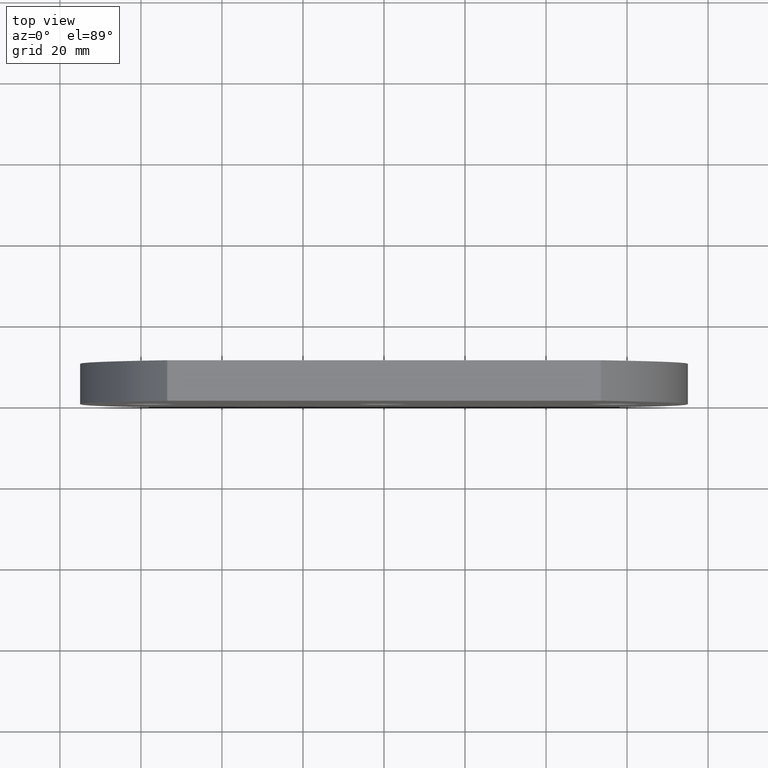
[diagram: clean part render]
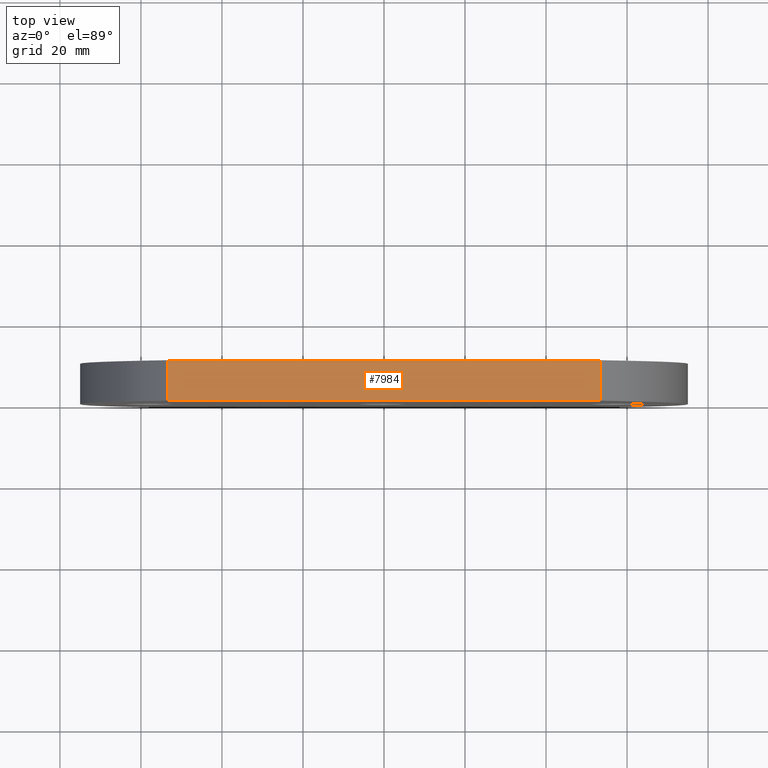
[diagram: same view with one face highlighted and labeled with its STEP entity id]
A machine part, top view. The second image highlights one B-rep face of the part: STEP entity #7984.
In plain terms, the highlighted planar face has unit normal (0, 0, -1).
Its self-contained STEP definition (entity closure, byte-faithful):
#109 = DIRECTION ( 'NONE',  ( -0.0000000000000000000, -1.000000000000000000, -0.0000000000000000000 ) ) ;
#267 = DIRECTION ( 'NONE',  ( -1.000000000000000000, 0.0000000000000000000, -2.593979029498029800E-016 ) ) ;
#302 = VERTEX_POINT ( 'NONE', #10068 ) ;
#356 = VECTOR ( 'NONE', #6112, 1000.000000000000000 ) ;
#449 = VERTEX_POINT ( 'NONE', #2947 ) ;
#1966 = ORIENTED_EDGE ( 'NONE', *, *, #8351, .T. ) ;
#2340 = LINE ( 'NONE', #4543, #4836 ) ;
#2731 = CARTESIAN_POINT ( 'NONE',  ( -53.50000000000003600, 10.00000000000000000, 49.99999999999998600 ) ) ;
#2854 = LINE ( 'NONE', #3523, #10480 ) ;
#2857 = VECTOR ( 'NONE', #10239, 1000.000000000000000 ) ;
#2947 = CARTESIAN_POINT ( 'NONE',  ( 53.49999999999996400, 0.0000000000000000000, 50.00000000000001400 ) ) ;
#3156 = AXIS2_PLACEMENT_3D ( 'NONE', #2731, #5294, #267 ) ;
#3523 = CARTESIAN_POINT ( 'NONE',  ( 53.49999999999996400, 10.00000000000000000, 50.00000000000001400 ) ) ;
#4026 = LINE ( 'NONE', #8551, #2857 ) ;
#4466 = PLANE ( 'NONE',  #3156 ) ;
#4543 = CARTESIAN_POINT ( 'NONE',  ( -53.50000000000003600, 10.00000000000000000, 49.99999999999998600 ) ) ;
#4639 = ORIENTED_EDGE ( 'NONE', *, *, #6900, .F. ) ;
#4836 = VECTOR ( 'NONE', #8053, 1000.000000000000000 ) ;
#5294 = DIRECTION ( 'NONE',  ( 2.593979029498029800E-016, 0.0000000000000000000, -1.000000000000000000 ) ) ;
#5791 = CARTESIAN_POINT ( 'NONE',  ( 53.49999999999996400, 10.00000000000000000, 50.00000000000001400 ) ) ;
#6112 = DIRECTION ( 'NONE',  ( -0.0000000000000000000, -1.000000000000000000, -0.0000000000000000000 ) ) ;
#6900 = EDGE_CURVE ( 'NONE', #7439, #449, #2854, .T. ) ;
#7369 = VERTEX_POINT ( 'NONE', #7703 ) ;
#7418 = EDGE_LOOP ( 'NONE', ( #10542, #4639, #7847, #1966 ) ) ;
#7439 = VERTEX_POINT ( 'NONE', #5791 ) ;
#7703 = CARTESIAN_POINT ( 'NONE',  ( -53.50000000000003600, 0.0000000000000000000, 49.99999999999998600 ) ) ;
#7847 = ORIENTED_EDGE ( 'NONE', *, *, #8064, .F. ) ;
#7984 = ADVANCED_FACE ( 'NONE', ( #9582 ), #4466, .F. ) ;
#8053 = DIRECTION ( 'NONE',  ( 1.000000000000000000, 0.0000000000000000000, 2.593979029498029300E-016 ) ) ;
#8064 = EDGE_CURVE ( 'NONE', #302, #7439, #2340, .T. ) ;
#8295 = EDGE_CURVE ( 'NONE', #7369, #449, #4026, .T. ) ;
#8351 = EDGE_CURVE ( 'NONE', #302, #7369, #9301, .T. ) ;
#8551 = CARTESIAN_POINT ( 'NONE',  ( -53.50000000000003600, 0.0000000000000000000, 49.99999999999998600 ) ) ;
#9301 = LINE ( 'NONE', #10278, #356 ) ;
#9582 = FACE_OUTER_BOUND ( 'NONE', #7418, .T. ) ;
#10068 = CARTESIAN_POINT ( 'NONE',  ( -53.50000000000003600, 10.00000000000000000, 49.99999999999998600 ) ) ;
#10239 = DIRECTION ( 'NONE',  ( 1.000000000000000000, 0.0000000000000000000, 2.593979029498029300E-016 ) ) ;
#10278 = CARTESIAN_POINT ( 'NONE',  ( -53.50000000000003600, 10.00000000000000000, 49.99999999999998600 ) ) ;
#10480 = VECTOR ( 'NONE', #109, 1000.000000000000000 ) ;
#10542 = ORIENTED_EDGE ( 'NONE', *, *, #8295, .T. ) ;